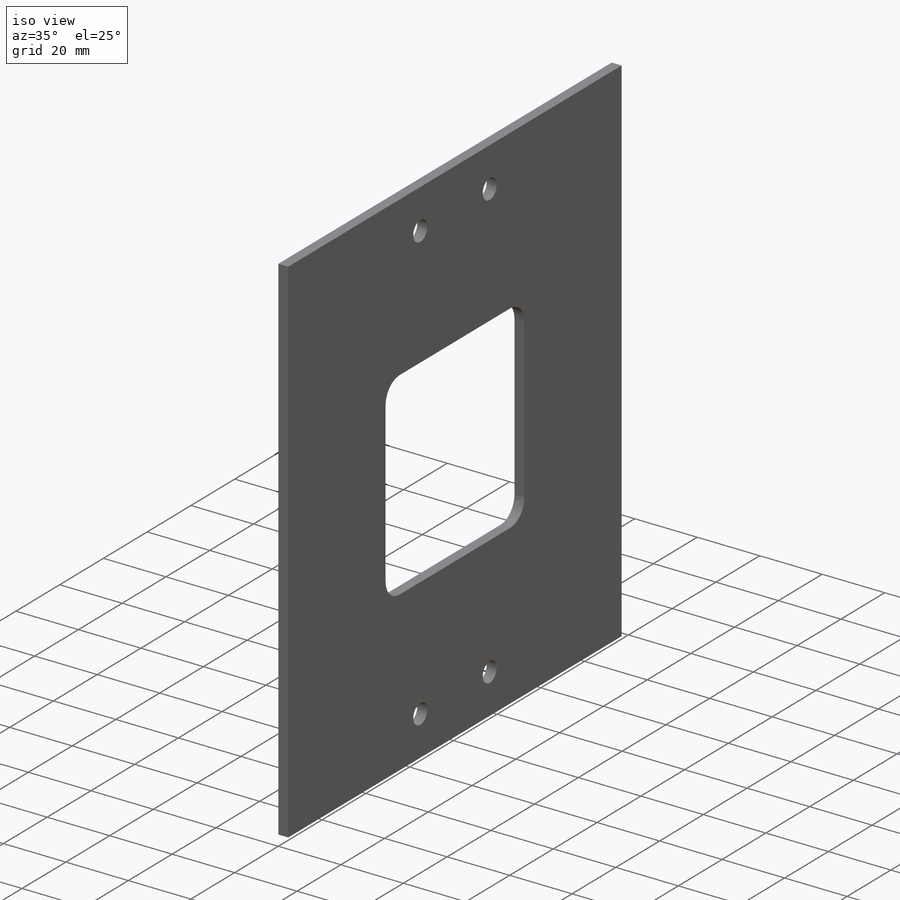
[diagram: iso view]
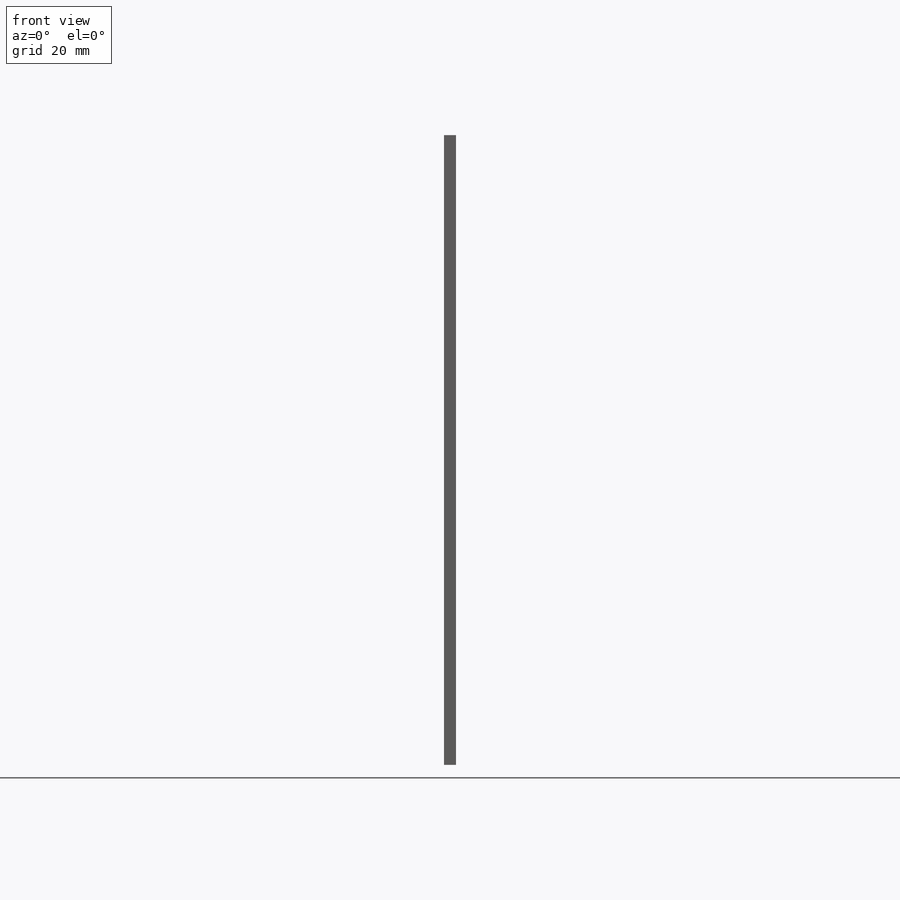
[diagram: front view]
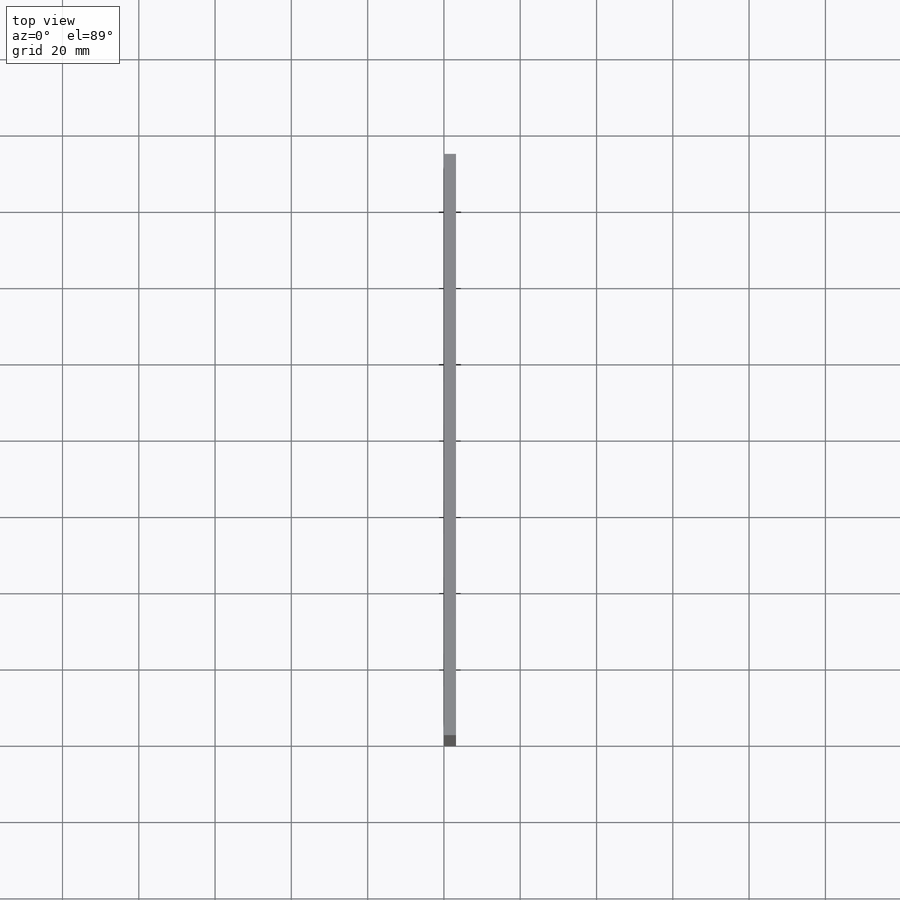
[diagram: top view]
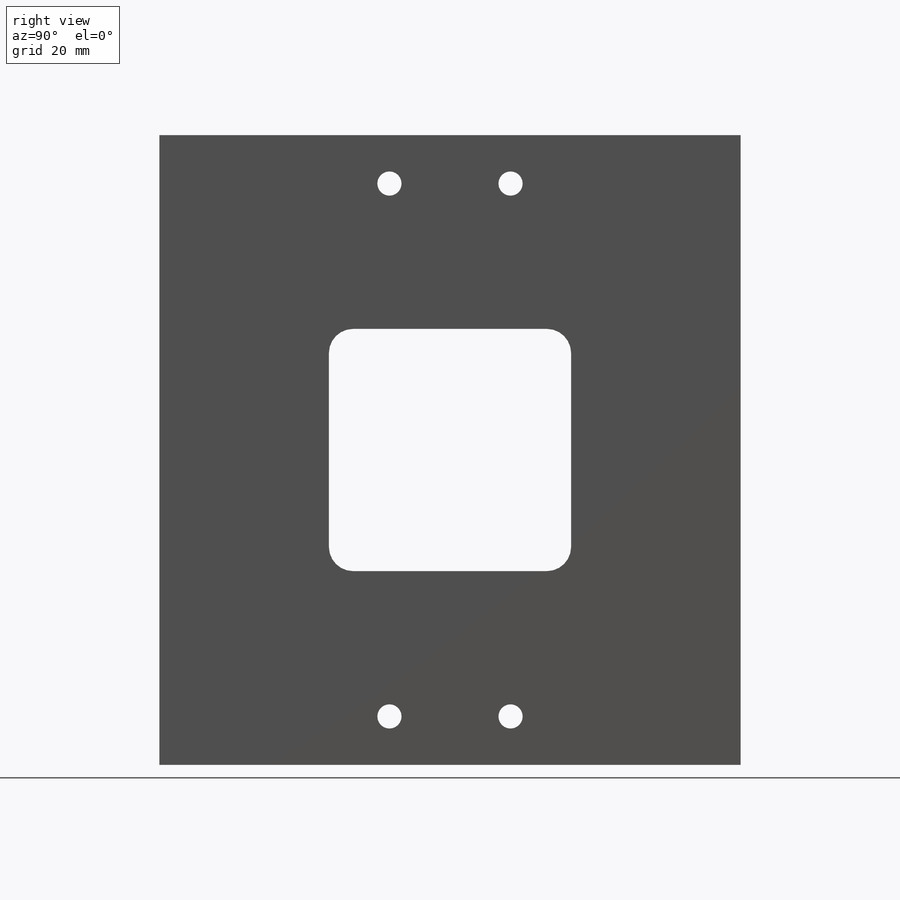
[diagram: right view]
SOLIDWORKS PART (.sldprt)
format: sldprt  version: not decoded by parser v0  size: 208,384 bytes
history: native  units: mm
features: sketch x4, cut_extrude x2, material x1, extrude x1 (+11 scaffold rows collapsed)
feature tree (19):
  scaffold x11  (default folders/planes/origin — collapsed)
  material  "ASTM A36 Steel"
  sketch  "Sketch1"  dims[D1=152.4mm D2=165.1mm]
  extrude  "Boss-Extrude1"  Depth=3.175mm
  sketch  "Sketch2"  dims[D1=6.35mm D2=63.5mm D3=63.5mm]
  cut_extrude  "Cut-Extrude1"  [1 undecoded]
  sketch  "Sketch3"  dims[D1=7.9375mm D2=12.7mm D3=31.75mm D4=12.7mm]
  cut_extrude  "Cut-Extrude2"  [1 undecoded]
  sketch  "TAG"  dims[D1=3.175mm D2=152.4mm D3=165.1mm]
decode coverage: 5 of 7 modeling features carry decoded parameters
note: 2 parameter values undecoded
note: suppression state not decoded; provenance and decode notes live in map.json
